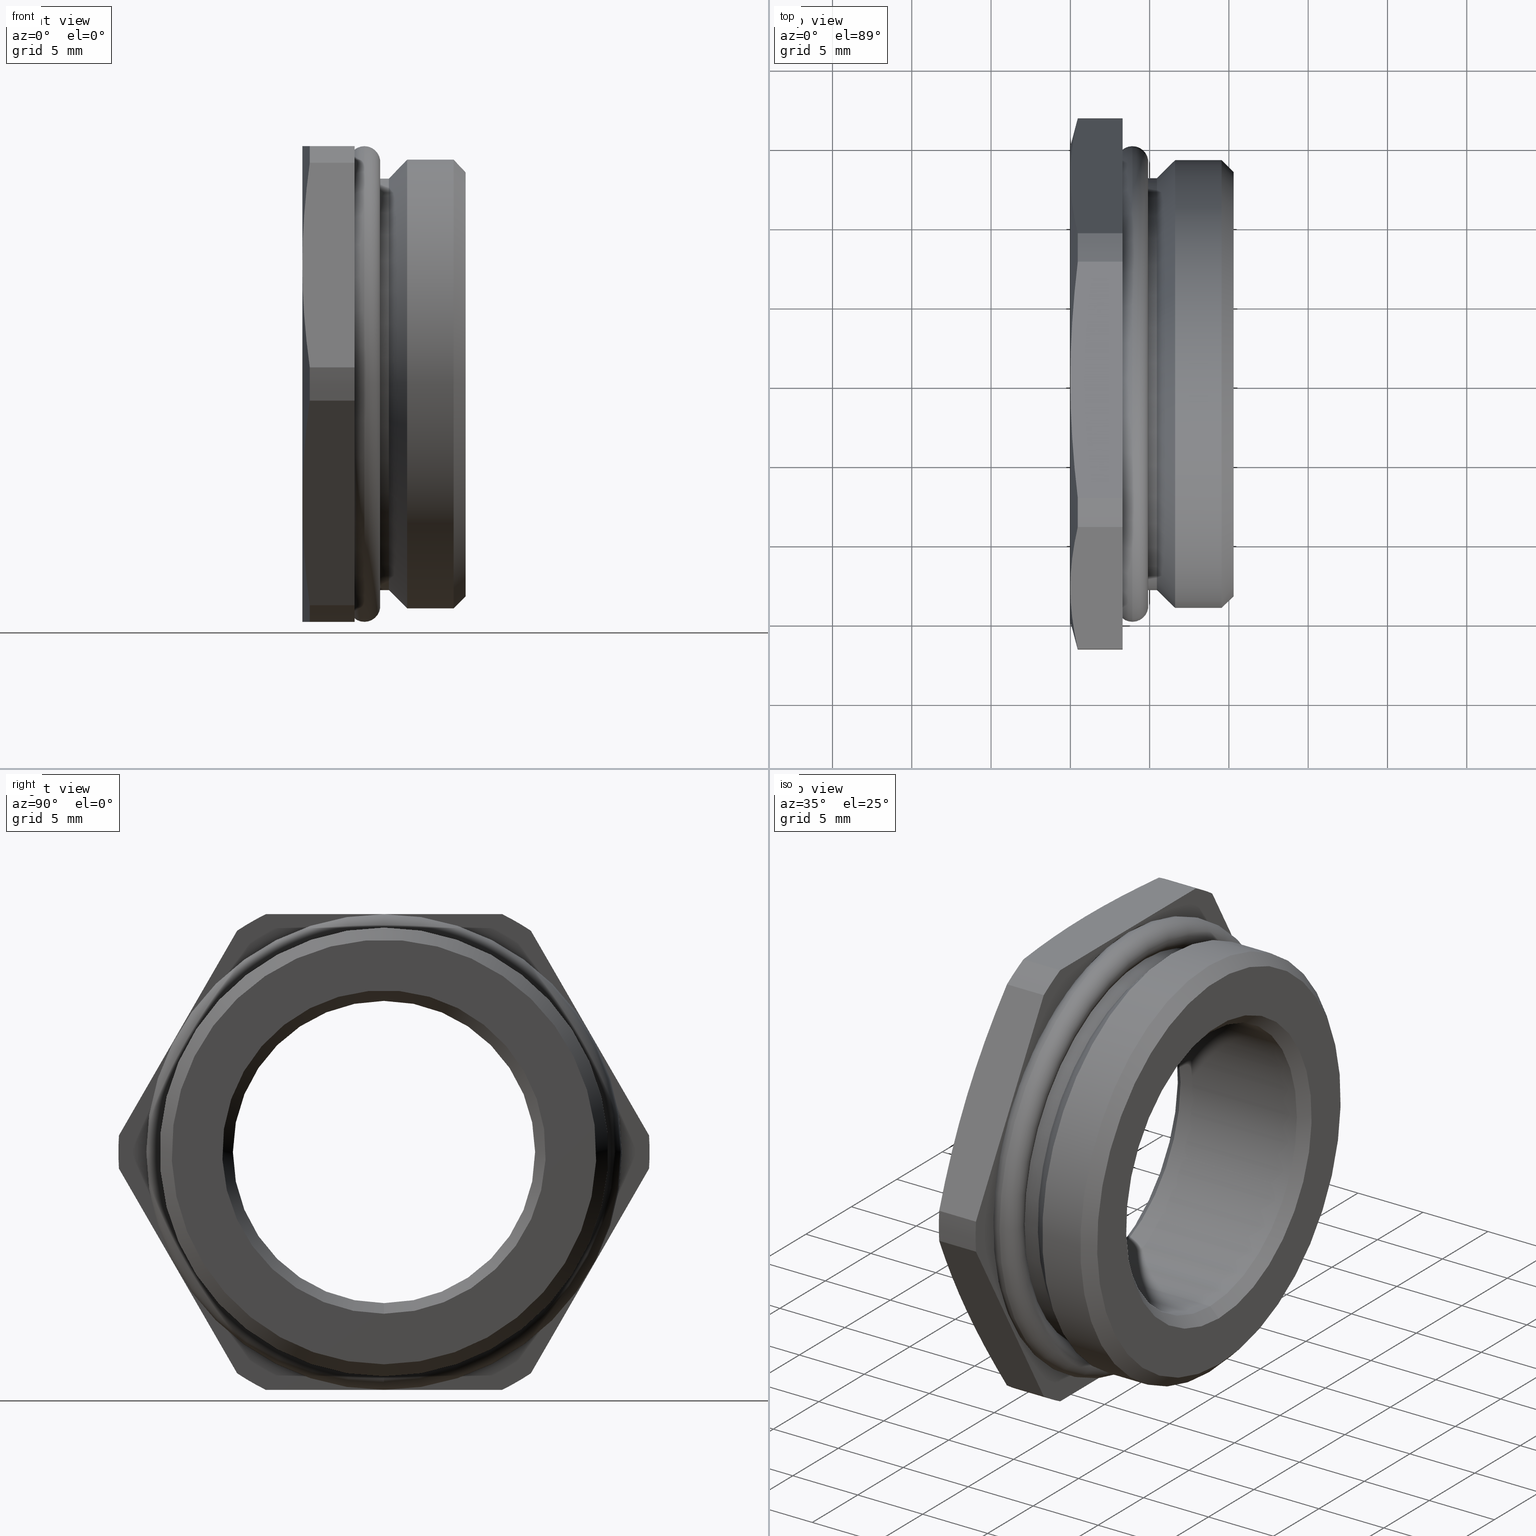
[diagram: canonical four-view strip — front | top / right | iso, engineering-drawing reading convention]
A machine part, canonical four-view strip (front | top / right | iso — engineering-drawing reading convention). The complete STEP part file that produces these views, byte-faithful:
ISO-10303-21;
HEADER;
FILE_DESCRIPTION( ( 'STEP AP203' ), '1' );
FILE_NAME( '//expscmdclustefs.cadenas.external/client_exchange/iodir/jobs/output/wkb75510342_no0/STEP/RSD-Ms_1_077_2113_01_2_03.stp', '  ', ( '  ' ), ( '  ' ), 'PSStep 15.0.47', 'PARTsolutions', '  ' );
FILE_SCHEMA( ( 'CONFIG_CONTROL_DESIGN' ) );
ENDSEC;
DATA;
#1 = DESIGN_CONTEXT( '', #55, 'design' );
#2 = APPLICATION_PROTOCOL_DEFINITION( 'international standard', 'config_control_design', 1994, #55 );
#3 = PRODUCT_CATEGORY_RELATIONSHIP( 'NONE', 'NONE', #56, #57 );
#4 = DATE_AND_TIME( #58, #59 );
#5 = DATE_TIME_ROLE( 'creation_date' );
#6 = DATE_TIME_ROLE( 'classification_date' );
#7 = PERSON_AND_ORGANIZATION_ROLE( 'creator' );
#8 = PERSON_AND_ORGANIZATION_ROLE( 'design_supplier' );
#9 = PERSON_AND_ORGANIZATION_ROLE( 'classification_officer' );
#10 = PERSON_AND_ORGANIZATION_ROLE( 'design_owner' );
#11 = APPROVAL_PERSON_ORGANIZATION( #60, #61, #62 );
#12 = APPROVAL_DATE_TIME( #4, #61 );
#13 = CC_DESIGN_APPROVAL( #61, ( #63, #64, #65 ) );
#14 = CC_DESIGN_DATE_AND_TIME_ASSIGNMENT( #4, #5, ( #65 ) );
#15 = CC_DESIGN_DATE_AND_TIME_ASSIGNMENT( #4, #6, ( #63 ) );
#16 = CC_DESIGN_PERSON_AND_ORGANIZATION_ASSIGNMENT( #60, #10, ( #66 ) );
#17 = CC_DESIGN_PERSON_AND_ORGANIZATION_ASSIGNMENT( #60, #7, ( #65 ) );
#18 = CC_DESIGN_PERSON_AND_ORGANIZATION_ASSIGNMENT( #60, #7, ( #64 ) );
#19 = CC_DESIGN_PERSON_AND_ORGANIZATION_ASSIGNMENT( #60, #8, ( #64 ) );
#20 = CC_DESIGN_SECURITY_CLASSIFICATION( #63, ( #64 ) );
#21 = CC_DESIGN_PERSON_AND_ORGANIZATION_ASSIGNMENT( #60, #9, ( #63 ) );
#22 = SHAPE_DEFINITION_REPRESENTATION( #67, #68 );
#23 = PRODUCT_CATEGORY_RELATIONSHIP( 'NONE', 'NONE', #56, #69 );
#24 = DATE_AND_TIME( #70, #71 );
#25 = APPROVAL_DATE_TIME( #24, #61 );
#26 = CC_DESIGN_APPROVAL( #61, ( #63, #72, #73 ) );
#27 = CC_DESIGN_DATE_AND_TIME_ASSIGNMENT( #24, #5, ( #73 ) );
#28 = CC_DESIGN_DATE_AND_TIME_ASSIGNMENT( #24, #6, ( #63 ) );
#29 = CC_DESIGN_PERSON_AND_ORGANIZATION_ASSIGNMENT( #60, #10, ( #74 ) );
#30 = CC_DESIGN_PERSON_AND_ORGANIZATION_ASSIGNMENT( #60, #7, ( #73 ) );
#31 = CC_DESIGN_PERSON_AND_ORGANIZATION_ASSIGNMENT( #60, #7, ( #72 ) );
#32 = CC_DESIGN_PERSON_AND_ORGANIZATION_ASSIGNMENT( #60, #8, ( #72 ) );
#33 = CC_DESIGN_SECURITY_CLASSIFICATION( #63, ( #72 ) );
#34 = CONTEXT_DEPENDENT_SHAPE_REPRESENTATION( #75, #76 );
#35 = SHAPE_DEFINITION_REPRESENTATION( #77, #78 );
#36 = SHAPE_REPRESENTATION_RELATIONSHIP( 'NONE', 'NONE', #78, #79 );
#37 = PRODUCT_CATEGORY_RELATIONSHIP( 'NONE', 'NONE', #56, #80 );
#38 = DATE_AND_TIME( #81, #82 );
#39 = APPROVAL_DATE_TIME( #38, #61 );
#40 = CC_DESIGN_APPROVAL( #61, ( #63, #83, #84 ) );
#41 = CC_DESIGN_DATE_AND_TIME_ASSIGNMENT( #38, #5, ( #84 ) );
#42 = CC_DESIGN_DATE_AND_TIME_ASSIGNMENT( #38, #6, ( #63 ) );
#43 = CC_DESIGN_PERSON_AND_ORGANIZATION_ASSIGNMENT( #60, #10, ( #85 ) );
#44 = CC_DESIGN_PERSON_AND_ORGANIZATION_ASSIGNMENT( #60, #7, ( #84 ) );
#45 = CC_DESIGN_PERSON_AND_ORGANIZATION_ASSIGNMENT( #60, #7, ( #83 ) );
#46 = CC_DESIGN_PERSON_AND_ORGANIZATION_ASSIGNMENT( #60, #8, ( #83 ) );
#47 = CC_DESIGN_SECURITY_CLASSIFICATION( #63, ( #83 ) );
#48 = CONTEXT_DEPENDENT_SHAPE_REPRESENTATION( #86, #87 );
#49 = SHAPE_DEFINITION_REPRESENTATION( #88, #89 );
#50 = SHAPE_REPRESENTATION_RELATIONSHIP( 'NONE', 'NONE', #89, #90 );
#51 =  ( GEOMETRIC_REPRESENTATION_CONTEXT( 3 )GLOBAL_UNCERTAINTY_ASSIGNED_CONTEXT( ( #93 ) )GLOBAL_UNIT_ASSIGNED_CONTEXT( ( #95, #96, #97 ) )REPRESENTATION_CONTEXT( 'NONE', 'WORKSPACE' ) );
#55 = APPLICATION_CONTEXT( 'configuration controlled 3D designs of mechanical parts and assemblies' );
#56 = PRODUCT_CATEGORY( 'part', 'NONE' );
#57 = PRODUCT_RELATED_PRODUCT_CATEGORY( 'detail', ' ', ( #66 ) );
#58 = CALENDAR_DATE( 2014, 30, 5 );
#59 = LOCAL_TIME( 22, 24, 17.0000000000000, #99 );
#60 = PERSON_AND_ORGANIZATION( #100, #101 );
#61 = APPROVAL( #102, 'SOLID MODEL' );
#62 = APPROVAL_ROLE( 'APPROVED' );
#63 = SECURITY_CLASSIFICATION( '', '', #103 );
#64 = PRODUCT_DEFINITION_FORMATION_WITH_SPECIFIED_SOURCE( ' ', 'NONE', #66, .NOT_KNOWN. );
#65 = PRODUCT_DEFINITION( 'NONE', 'NONE', #64, #1 );
#66 = PRODUCT( 'RSD-Ms 1.077.2113.01', 'RSD-Ms 1.077.2113.01', 'PART-RSD-Ms 1.077.2113.01-DESC', ( #104 ) );
#67 = PRODUCT_DEFINITION_SHAPE( 'NONE', 'NONE', #65 );
#68 = SHAPE_REPRESENTATION( 'RSD-Ms 1.077.2113.01', ( #105, #106, #107 ), #108 );
#69 = PRODUCT_RELATED_PRODUCT_CATEGORY( 'detail', ' ', ( #74 ) );
#70 = CALENDAR_DATE( 2014, 30, 5 );
#71 = LOCAL_TIME( 22, 24, 17.0000000000000, #109 );
#72 = PRODUCT_DEFINITION_FORMATION_WITH_SPECIFIED_SOURCE( ' ', 'NONE', #74, .NOT_KNOWN. );
#73 = PRODUCT_DEFINITION( 'HI_RSD-Ms 1.077.2113.01-Reduction', 'HI_RSD-Ms 1.077.2113.01-Reduction', #72, #1 );
#74 = PRODUCT( 'HI_RSD-Ms 1.077.2113.01-Reduction', 'HI_RSD-Ms 1.077.2113.01-Reduction', 'PART-HI_RSD-Ms 1.077.2113.01-Reduction-DESC', ( #104 ) );
#75 = ( REPRESENTATION_RELATIONSHIP( '', '', #78, #68 )REPRESENTATION_RELATIONSHIP_WITH_TRANSFORMATION( #112 )SHAPE_REPRESENTATION_RELATIONSHIP(  ) );
#76 = PRODUCT_DEFINITION_SHAPE( 'NAUO-PROD-DEF', 'NAUO-PROD-DEF', #114 );
#77 = PRODUCT_DEFINITION_SHAPE( 'NONE', 'NONE', #73 );
#78 = SHAPE_REPRESENTATION( 'HI_RSD-Ms 1.077.2113.01-Reduction', ( #105 ), #108 );
#79 = ADVANCED_BREP_SHAPE_REPRESENTATION( 'HI_RSD-Ms 1.077.2113.01-Reduction', ( #115 ), #51 );
#80 = PRODUCT_RELATED_PRODUCT_CATEGORY( 'detail', ' ', ( #85 ) );
#81 = CALENDAR_DATE( 2014, 30, 5 );
#82 = LOCAL_TIME( 22, 24, 17.0000000000000, #116 );
#83 = PRODUCT_DEFINITION_FORMATION_WITH_SPECIFIED_SOURCE( ' ', 'NONE', #85, .NOT_KNOWN. );
#84 = PRODUCT_DEFINITION( 'HI_RSD-Ms 1.077.2113.01-O-Ring', 'HI_RSD-Ms 1.077.2113.01-O-Ring', #83, #1 );
#85 = PRODUCT( 'HI_RSD-Ms 1.077.2113.01-O-Ring', 'HI_RSD-Ms 1.077.2113.01-O-Ring', 'PART-HI_RSD-Ms 1.077.2113.01-O-Ring-DESC', ( #104 ) );
#86 = ( REPRESENTATION_RELATIONSHIP( '', '', #89, #68 )REPRESENTATION_RELATIONSHIP_WITH_TRANSFORMATION( #119 )SHAPE_REPRESENTATION_RELATIONSHIP(  ) );
#87 = PRODUCT_DEFINITION_SHAPE( 'NAUO-PROD-DEF', 'NAUO-PROD-DEF', #121 );
#88 = PRODUCT_DEFINITION_SHAPE( 'NONE', 'NONE', #84 );
#89 = SHAPE_REPRESENTATION( 'HI_RSD-Ms 1.077.2113.01-O-Ring', ( #105 ), #108 );
#90 = ADVANCED_BREP_SHAPE_REPRESENTATION( 'HI_RSD-Ms 1.077.2113.01-O-Ring', ( #122 ), #51 );
#93 = UNCERTAINTY_MEASURE_WITH_UNIT( LENGTH_MEASURE( 0.00100000000000000 ), #95, '', '' );
#95 =  ( CONVERSION_BASED_UNIT( 'MILLIMETRE', #125 )LENGTH_UNIT(  )NAMED_UNIT( #128 ) );
#96 =  ( NAMED_UNIT( #130 )PLANE_ANGLE_UNIT(  )SI_UNIT( $, .RADIAN. ) );
#97 =  ( NAMED_UNIT( #130 )SI_UNIT( $, .STERADIAN. )SOLID_ANGLE_UNIT(  ) );
#99 = COORDINATED_UNIVERSAL_TIME_OFFSET( 1, 0, .AHEAD. );
#100 = PERSON( '', 'UNSPECIFIED', $, $, $, $ );
#101 = ORGANIZATION( 'UNSPECIFIED', 'UNSPECIFIED', 'UNSPECIFIED' );
#102 = APPROVAL_STATUS( 'approved' );
#103 = SECURITY_CLASSIFICATION_LEVEL( 'unclassified' );
#104 = MECHANICAL_CONTEXT( '', #55, 'mechanical' );
#105 = AXIS2_PLACEMENT_3D( '', #136, #137, #138 );
#106 = AXIS2_PLACEMENT_3D( '', #139, #140, #141 );
#107 = AXIS2_PLACEMENT_3D( '', #142, #143, #144 );
#108 =  ( GEOMETRIC_REPRESENTATION_CONTEXT( 3 )GLOBAL_UNCERTAINTY_ASSIGNED_CONTEXT( ( #147 ) )GLOBAL_UNIT_ASSIGNED_CONTEXT( ( #149, #150, #151 ) )REPRESENTATION_CONTEXT( 'NONE', 'WORKSPACE' ) );
#109 = COORDINATED_UNIVERSAL_TIME_OFFSET( 1, 0, .AHEAD. );
#112 = ITEM_DEFINED_TRANSFORMATION( '', '', #105, #106 );
#114 = NEXT_ASSEMBLY_USAGE_OCCURRENCE( 'NAUO1', 'NAUO1', 'NAUO1', #65, #73, $ );
#115 = MANIFOLD_SOLID_BREP( 'HI_RSD-Ms 1.077.2113.01-Reduction', #153 );
#116 = COORDINATED_UNIVERSAL_TIME_OFFSET( 1, 0, .AHEAD. );
#119 = ITEM_DEFINED_TRANSFORMATION( '', '', #105, #107 );
#121 = NEXT_ASSEMBLY_USAGE_OCCURRENCE( 'NAUO2', 'NAUO2', 'NAUO2', #65, #84, $ );
#122 = MANIFOLD_SOLID_BREP( 'HI_RSD-Ms 1.077.2113.01-O-Ring', #154 );
#125 = LENGTH_MEASURE_WITH_UNIT( LENGTH_MEASURE( 1.00000000000000 ), #155 );
#128 = DIMENSIONAL_EXPONENTS( 1.00000000000000, 0.000000000000000, 0.000000000000000, 0.000000000000000, 0.000000000000000, 0.000000000000000, 0.000000000000000 );
#130 = DIMENSIONAL_EXPONENTS( 0.000000000000000, 0.000000000000000, 0.000000000000000, 0.000000000000000, 0.000000000000000, 0.000000000000000, 0.000000000000000 );
#136 = CARTESIAN_POINT( '', ( 0.000000000000000, 0.000000000000000, 0.000000000000000 ) );
#137 = DIRECTION( '', ( 0.000000000000000, 0.000000000000000, 1.00000000000000 ) );
#138 = DIRECTION( '', ( 1.00000000000000, 0.000000000000000, 0.000000000000000 ) );
#139 = CARTESIAN_POINT( '', ( 0.000000000000000, 0.000000000000000, 0.000000000000000 ) );
#140 = DIRECTION( '', ( 0.000000000000000, 0.000000000000000, 1.00000000000000 ) );
#141 = DIRECTION( '', ( 1.00000000000000, 0.000000000000000, 0.000000000000000 ) );
#142 = CARTESIAN_POINT( '', ( 3.91420000000000, 0.000000000000000, 0.000000000000000 ) );
#143 = DIRECTION( '', ( 0.000000000000000, 0.000000000000000, 1.00000000000000 ) );
#144 = DIRECTION( '', ( -1.00000000000000, 0.000000000000000, 0.000000000000000 ) );
#147 = UNCERTAINTY_MEASURE_WITH_UNIT( LENGTH_MEASURE( 0.00100000000000000 ), #149, '', '' );
#149 =  ( CONVERSION_BASED_UNIT( 'MILLIMETRE', #158 )LENGTH_UNIT(  )NAMED_UNIT( #161 ) );
#150 =  ( NAMED_UNIT( #163 )PLANE_ANGLE_UNIT(  )SI_UNIT( $, .RADIAN. ) );
#151 =  ( NAMED_UNIT( #163 )SI_UNIT( $, .STERADIAN. )SOLID_ANGLE_UNIT(  ) );
#153 = CLOSED_SHELL( '', ( #169, #170, #171, #172, #173, #174, #175, #176, #177, #178, #179, #180, #181, #182, #183, #184, #185, #186, #187, #188, #189, #190, #191, #192, #193, #194, #195, #196, #197, #198 ) );
#154 = CLOSED_SHELL( '', ( #199 ) );
#155 =  ( LENGTH_UNIT(  )NAMED_UNIT( #128 )SI_UNIT( .MILLI., .METRE. ) );
#158 = LENGTH_MEASURE_WITH_UNIT( LENGTH_MEASURE( 1.00000000000000 ), #201 );
#161 = DIMENSIONAL_EXPONENTS( 1.00000000000000, 0.000000000000000, 0.000000000000000, 0.000000000000000, 0.000000000000000, 0.000000000000000, 0.000000000000000 );
#163 = DIMENSIONAL_EXPONENTS( 0.000000000000000, 0.000000000000000, 0.000000000000000, 0.000000000000000, 0.000000000000000, 0.000000000000000, 0.000000000000000 );
#169 = ADVANCED_FACE( '', ( #202 ), #203, .T. );
#170 = ADVANCED_FACE( '', ( #204, #205 ), #206, .F. );
#171 = ADVANCED_FACE( '', ( #207 ), #208, .F. );
#172 = ADVANCED_FACE( '', ( #209 ), #210, .T. );
#173 = ADVANCED_FACE( '', ( #211, #212 ), #213, .F. );
#174 = ADVANCED_FACE( '', ( #214 ), #215, .F. );
#175 = ADVANCED_FACE( '', ( #216 ), #217, .T. );
#176 = ADVANCED_FACE( '', ( #218 ), #219, .T. );
#177 = ADVANCED_FACE( '', ( #220 ), #221, .F. );
#178 = ADVANCED_FACE( '', ( #222 ), #223, .F. );
#179 = ADVANCED_FACE( '', ( #224, #225 ), #226, .F. );
#180 = ADVANCED_FACE( '', ( #227, #228 ), #229, .F. );
#181 = ADVANCED_FACE( '', ( #230, #231 ), #232, .F. );
#182 = ADVANCED_FACE( '', ( #233, #234 ), #235, .T. );
#183 = ADVANCED_FACE( '', ( #236, #237 ), #238, .F. );
#184 = ADVANCED_FACE( '', ( #239, #240 ), #241, .T. );
#185 = ADVANCED_FACE( '', ( #242, #243 ), #244, .T. );
#186 = ADVANCED_FACE( '', ( #245, #246 ), #247, .T. );
#187 = ADVANCED_FACE( '', ( #248, #249 ), #250, .F. );
#188 = ADVANCED_FACE( '', ( #251, #252 ), #253, .F. );
#189 = ADVANCED_FACE( '', ( #254 ), #255, .T. );
#190 = ADVANCED_FACE( '', ( #256 ), #257, .T. );
#191 = ADVANCED_FACE( '', ( #258 ), #259, .T. );
#192 = ADVANCED_FACE( '', ( #260 ), #261, .T. );
#193 = ADVANCED_FACE( '', ( #262 ), #263, .T. );
#194 = ADVANCED_FACE( '', ( #264 ), #265, .T. );
#195 = ADVANCED_FACE( '', ( #266 ), #267, .T. );
#196 = ADVANCED_FACE( '', ( #268 ), #269, .F. );
#197 = ADVANCED_FACE( '', ( #270 ), #271, .F. );
#198 = ADVANCED_FACE( '', ( #272 ), #273, .T. );
#199 = ADVANCED_FACE( '', ( #274 ), #275, .T. );
#201 =  ( LENGTH_UNIT(  )NAMED_UNIT( #161 )SI_UNIT( .MILLI., .METRE. ) );
#202 = FACE_OUTER_BOUND( '', #277, .T. );
#203 = CONICAL_SURFACE( '', #278, 15.0000000000000, 1.30899693899575 );
#204 = FACE_OUTER_BOUND( '', #279, .T. );
#205 = FACE_BOUND( '', #280, .T. );
#206 = PLANE( '', #281 );
#207 = FACE_OUTER_BOUND( '', #282, .T. );
#208 = PLANE( '', #283 );
#209 = FACE_OUTER_BOUND( '', #284, .T. );
#210 = CONICAL_SURFACE( '', #285, 15.0000000000000, 1.30899693899575 );
#211 = FACE_BOUND( '', #286, .T. );
#212 = FACE_OUTER_BOUND( '', #287, .T. );
#213 = PLANE( '', #288 );
#214 = FACE_OUTER_BOUND( '', #289, .T. );
#215 = PLANE( '', #290 );
#216 = FACE_OUTER_BOUND( '', #291, .T. );
#217 = CYLINDRICAL_SURFACE( '', #292, 16.7500000000000 );
#218 = FACE_OUTER_BOUND( '', #293, .T. );
#219 = CONICAL_SURFACE( '', #294, 15.0000000000000, 1.30899693899575 );
#220 = FACE_OUTER_BOUND( '', #295, .T. );
#221 = PLANE( '', #296 );
#222 = FACE_OUTER_BOUND( '', #297, .T. );
#223 = PLANE( '', #298 );
#224 = FACE_OUTER_BOUND( '', #299, .T. );
#225 = FACE_BOUND( '', #300, .T. );
#226 = CONICAL_SURFACE( '', #301, 9.53000000000000, 0.785398163397448 );
#227 = FACE_OUTER_BOUND( '', #302, .T. );
#228 = FACE_OUTER_BOUND( '', #303, .T. );
#229 = CYLINDRICAL_SURFACE( '', #304, 9.53000000000000 );
#230 = FACE_BOUND( '', #305, .T. );
#231 = FACE_OUTER_BOUND( '', #306, .T. );
#232 = CONICAL_SURFACE( '', #307, 10.2000000000000, 0.785398163397447 );
#233 = FACE_BOUND( '', #308, .T. );
#234 = FACE_OUTER_BOUND( '', #309, .T. );
#235 = CONICAL_SURFACE( '', #310, 14.1500000000000, 0.785398163397450 );
#236 = FACE_BOUND( '', #311, .T. );
#237 = FACE_OUTER_BOUND( '', #312, .T. );
#238 = PLANE( '', #313 );
#239 = FACE_OUTER_BOUND( '', #314, .T. );
#240 = FACE_OUTER_BOUND( '', #315, .T. );
#241 = CYLINDRICAL_SURFACE( '', #316, 14.1500000000000 );
#242 = FACE_OUTER_BOUND( '', #317, .T. );
#243 = FACE_BOUND( '', #318, .T. );
#244 = CONICAL_SURFACE( '', #319, 13.0000000000000, 0.785398163397449 );
#245 = FACE_OUTER_BOUND( '', #320, .T. );
#246 = FACE_OUTER_BOUND( '', #321, .T. );
#247 = CYLINDRICAL_SURFACE( '', #322, 13.0000000000000 );
#248 = FACE_OUTER_BOUND( '', #323, .T. );
#249 = FACE_OUTER_BOUND( '', #324, .T. );
#250 = TOROIDAL_SURFACE( '', #325, 13.2000000000000, 0.199999999999999 );
#251 = FACE_BOUND( '', #326, .T. );
#252 = FACE_OUTER_BOUND( '', #327, .T. );
#253 = CONICAL_SURFACE( '', #328, 14.7997979746447, 0.785398163397448 );
#254 = FACE_OUTER_BOUND( '', #329, .T. );
#255 = CYLINDRICAL_SURFACE( '', #330, 16.7500000000000 );
#256 = FACE_OUTER_BOUND( '', #331, .T. );
#257 = CYLINDRICAL_SURFACE( '', #332, 16.7500000000000 );
#258 = FACE_OUTER_BOUND( '', #333, .T. );
#259 = CYLINDRICAL_SURFACE( '', #334, 16.7500000000000 );
#260 = FACE_OUTER_BOUND( '', #335, .T. );
#261 = CYLINDRICAL_SURFACE( '', #336, 16.7500000000000 );
#262 = FACE_OUTER_BOUND( '', #337, .T. );
#263 = CONICAL_SURFACE( '', #338, 15.0000000000000, 1.30899693899575 );
#264 = FACE_OUTER_BOUND( '', #339, .T. );
#265 = CONICAL_SURFACE( '', #340, 15.0000000000000, 1.30899693899575 );
#266 = FACE_OUTER_BOUND( '', #341, .T. );
#267 = CONICAL_SURFACE( '', #342, 15.0000000000000, 1.30899693899575 );
#268 = FACE_OUTER_BOUND( '', #343, .T. );
#269 = PLANE( '', #344 );
#270 = FACE_OUTER_BOUND( '', #345, .T. );
#271 = PLANE( '', #346 );
#272 = FACE_OUTER_BOUND( '', #347, .T. );
#273 = CYLINDRICAL_SURFACE( '', #348, 16.7500000000000 );
#274 = FACE_BOUND( '', #349, .T. );
#275 = TOROIDAL_SURFACE( '', #350, 14.0000000000000, 1.00000000000000 );
#277 = EDGE_LOOP( '', ( #351, #352, #353, #354 ) );
#278 = AXIS2_PLACEMENT_3D( '', #355, #356, #357 );
#279 = EDGE_LOOP( '', ( #358, #359, #360, #361, #362, #363 ) );
#280 = EDGE_LOOP( '', ( #364 ) );
#281 = AXIS2_PLACEMENT_3D( '', #365, #366, #367 );
#282 = EDGE_LOOP( '', ( #368, #369, #370, #371, #372 ) );
#283 = AXIS2_PLACEMENT_3D( '', #373, #374, #375 );
#284 = EDGE_LOOP( '', ( #376, #377, #378, #379 ) );
#285 = AXIS2_PLACEMENT_3D( '', #380, #381, #382 );
#286 = EDGE_LOOP( '', ( #383 ) );
#287 = EDGE_LOOP( '', ( #384, #385, #386, #387, #388, #389, #390, #391, #392, #393, #394, #395 ) );
#288 = AXIS2_PLACEMENT_3D( '', #396, #397, #398 );
#289 = EDGE_LOOP( '', ( #399, #400, #401, #402, #403 ) );
#290 = AXIS2_PLACEMENT_3D( '', #404, #405, #406 );
#291 = EDGE_LOOP( '', ( #407, #408, #409, #410 ) );
#292 = AXIS2_PLACEMENT_3D( '', #411, #412, #413 );
#293 = EDGE_LOOP( '', ( #414, #415, #416, #417 ) );
#294 = AXIS2_PLACEMENT_3D( '', #418, #419, #420 );
#295 = EDGE_LOOP( '', ( #421, #422, #423, #424, #425 ) );
#296 = AXIS2_PLACEMENT_3D( '', #426, #427, #428 );
#297 = EDGE_LOOP( '', ( #429, #430, #431, #432, #433 ) );
#298 = AXIS2_PLACEMENT_3D( '', #434, #435, #436 );
#299 = EDGE_LOOP( '', ( #437 ) );
#300 = EDGE_LOOP( '', ( #438 ) );
#301 = AXIS2_PLACEMENT_3D( '', #439, #440, #441 );
#302 = EDGE_LOOP( '', ( #442 ) );
#303 = EDGE_LOOP( '', ( #443 ) );
#304 = AXIS2_PLACEMENT_3D( '', #444, #445, #446 );
#305 = EDGE_LOOP( '', ( #447 ) );
#306 = EDGE_LOOP( '', ( #448 ) );
#307 = AXIS2_PLACEMENT_3D( '', #449, #450, #451 );
#308 = EDGE_LOOP( '', ( #452 ) );
#309 = EDGE_LOOP( '', ( #453 ) );
#310 = AXIS2_PLACEMENT_3D( '', #454, #455, #456 );
#311 = EDGE_LOOP( '', ( #457 ) );
#312 = EDGE_LOOP( '', ( #458 ) );
#313 = AXIS2_PLACEMENT_3D( '', #459, #460, #461 );
#314 = EDGE_LOOP( '', ( #462 ) );
#315 = EDGE_LOOP( '', ( #463 ) );
#316 = AXIS2_PLACEMENT_3D( '', #464, #465, #466 );
#317 = EDGE_LOOP( '', ( #467 ) );
#318 = EDGE_LOOP( '', ( #468 ) );
#319 = AXIS2_PLACEMENT_3D( '', #469, #470, #471 );
#320 = EDGE_LOOP( '', ( #472 ) );
#321 = EDGE_LOOP( '', ( #473 ) );
#322 = AXIS2_PLACEMENT_3D( '', #474, #475, #476 );
#323 = EDGE_LOOP( '', ( #477 ) );
#324 = EDGE_LOOP( '', ( #478 ) );
#325 = AXIS2_PLACEMENT_3D( '', #479, #480, #481 );
#326 = EDGE_LOOP( '', ( #482 ) );
#327 = EDGE_LOOP( '', ( #483 ) );
#328 = AXIS2_PLACEMENT_3D( '', #484, #485, #486 );
#329 = EDGE_LOOP( '', ( #487, #488, #489, #490 ) );
#330 = AXIS2_PLACEMENT_3D( '', #491, #492, #493 );
#331 = EDGE_LOOP( '', ( #494, #495, #496, #497 ) );
#332 = AXIS2_PLACEMENT_3D( '', #498, #499, #500 );
#333 = EDGE_LOOP( '', ( #501, #502, #503, #504 ) );
#334 = AXIS2_PLACEMENT_3D( '', #505, #506, #507 );
#335 = EDGE_LOOP( '', ( #508, #509, #510, #511 ) );
#336 = AXIS2_PLACEMENT_3D( '', #512, #513, #514 );
#337 = EDGE_LOOP( '', ( #515, #516, #517, #518 ) );
#338 = AXIS2_PLACEMENT_3D( '', #519, #520, #521 );
#339 = EDGE_LOOP( '', ( #522, #523, #524, #525 ) );
#340 = AXIS2_PLACEMENT_3D( '', #526, #527, #528 );
#341 = EDGE_LOOP( '', ( #529, #530, #531, #532 ) );
#342 = AXIS2_PLACEMENT_3D( '', #533, #534, #535 );
#343 = EDGE_LOOP( '', ( #536, #537, #538, #539, #540 ) );
#344 = AXIS2_PLACEMENT_3D( '', #541, #542, #543 );
#345 = EDGE_LOOP( '', ( #544, #545, #546, #547, #548 ) );
#346 = AXIS2_PLACEMENT_3D( '', #549, #550, #551 );
#347 = EDGE_LOOP( '', ( #552, #553, #554, #555 ) );
#348 = AXIS2_PLACEMENT_3D( '', #556, #557, #558 );
#349 = VERTEX_LOOP( '', #559 );
#350 = AXIS2_PLACEMENT_3D( '', #560, #561, #562 );
#351 = ORIENTED_EDGE( '', *, *, #563, .F. );
#352 = ORIENTED_EDGE( '', *, *, #564, .T. );
#353 = ORIENTED_EDGE( '', *, *, #565, .T. );
#354 = ORIENTED_EDGE( '', *, *, #566, .T. );
#355 = CARTESIAN_POINT( '', ( 0.000000000000000, 0.000000000000000, 0.000000000000000 ) );
#356 = DIRECTION( '', ( 1.00000000000000, -0.000000000000000, -0.000000000000000 ) );
#357 = DIRECTION( '', ( -0.000000000000000, 0.000000000000000, -1.00000000000000 ) );
#358 = ORIENTED_EDGE( '', *, *, #567, .F. );
#359 = ORIENTED_EDGE( '', *, *, #568, .F. );
#360 = ORIENTED_EDGE( '', *, *, #569, .F. );
#361 = ORIENTED_EDGE( '', *, *, #570, .F. );
#362 = ORIENTED_EDGE( '', *, *, #571, .F. );
#363 = ORIENTED_EDGE( '', *, *, #565, .F. );
#364 = ORIENTED_EDGE( '', *, *, #572, .T. );
#365 = CARTESIAN_POINT( '', ( 0.000000000000000, 0.000000000000000, 0.000000000000000 ) );
#366 = DIRECTION( '', ( 1.00000000000000, 0.000000000000000, -0.000000000000000 ) );
#367 = DIRECTION( '', ( -0.000000000000000, 0.000000000000000, -1.00000000000000 ) );
#368 = ORIENTED_EDGE( '', *, *, #573, .F. );
#369 = ORIENTED_EDGE( '', *, *, #574, .F. );
#370 = ORIENTED_EDGE( '', *, *, #575, .F. );
#371 = ORIENTED_EDGE( '', *, *, #566, .F. );
#372 = ORIENTED_EDGE( '', *, *, #576, .F. );
#373 = CARTESIAN_POINT( '', ( 5.00000000000000, 8.66025403784439, 15.0000000000000 ) );
#374 = DIRECTION( '', ( 0.000000000000000, 0.000000000000000, -1.00000000000000 ) );
#375 = DIRECTION( '', ( -1.00000000000000, 0.000000000000000, 0.000000000000000 ) );
#376 = ORIENTED_EDGE( '', *, *, #571, .T. );
#377 = ORIENTED_EDGE( '', *, *, #577, .T. );
#378 = ORIENTED_EDGE( '', *, *, #578, .F. );
#379 = ORIENTED_EDGE( '', *, *, #576, .T. );
#380 = CARTESIAN_POINT( '', ( 0.000000000000000, 0.000000000000000, 0.000000000000000 ) );
#381 = DIRECTION( '', ( 1.00000000000000, -0.000000000000000, -0.000000000000000 ) );
#382 = DIRECTION( '', ( -0.000000000000000, 0.000000000000000, -1.00000000000000 ) );
#383 = ORIENTED_EDGE( '', *, *, #579, .F. );
#384 = ORIENTED_EDGE( '', *, *, #580, .T. );
#385 = ORIENTED_EDGE( '', *, *, #581, .T. );
#386 = ORIENTED_EDGE( '', *, *, #582, .T. );
#387 = ORIENTED_EDGE( '', *, *, #574, .T. );
#388 = ORIENTED_EDGE( '', *, *, #583, .T. );
#389 = ORIENTED_EDGE( '', *, *, #584, .T. );
#390 = ORIENTED_EDGE( '', *, *, #585, .T. );
#391 = ORIENTED_EDGE( '', *, *, #586, .T. );
#392 = ORIENTED_EDGE( '', *, *, #587, .T. );
#393 = ORIENTED_EDGE( '', *, *, #588, .T. );
#394 = ORIENTED_EDGE( '', *, *, #589, .T. );
#395 = ORIENTED_EDGE( '', *, *, #590, .T. );
#396 = CARTESIAN_POINT( '', ( 3.30000000000000, 16.7500000000000, 0.000000000000000 ) );
#397 = DIRECTION( '', ( -1.00000000000000, 0.000000000000000, 0.000000000000000 ) );
#398 = DIRECTION( '', ( 0.000000000000000, 0.000000000000000, 1.00000000000000 ) );
#399 = ORIENTED_EDGE( '', *, *, #591, .F. );
#400 = ORIENTED_EDGE( '', *, *, #590, .F. );
#401 = ORIENTED_EDGE( '', *, *, #592, .F. );
#402 = ORIENTED_EDGE( '', *, *, #593, .F. );
#403 = ORIENTED_EDGE( '', *, *, #594, .F. );
#404 = CARTESIAN_POINT( '', ( 5.00000000000000, 8.66025403784439, -15.0000000000000 ) );
#405 = DIRECTION( '', ( 0.000000000000000, -0.866025403784439, 0.500000000000000 ) );
#406 = DIRECTION( '', ( 0.000000000000000, -0.500000000000000, -0.866025403784439 ) );
#407 = ORIENTED_EDGE( '', *, *, #595, .T. );
#408 = ORIENTED_EDGE( '', *, *, #592, .T. );
#409 = ORIENTED_EDGE( '', *, *, #589, .F. );
#410 = ORIENTED_EDGE( '', *, *, #596, .T. );
#411 = CARTESIAN_POINT( '', ( 10.3000000000000, 0.000000000000000, 0.000000000000000 ) );
#412 = DIRECTION( '', ( -1.00000000000000, -0.000000000000000, 0.000000000000000 ) );
#413 = DIRECTION( '', ( -0.000000000000000, 0.000000000000000, -1.00000000000000 ) );
#414 = ORIENTED_EDGE( '', *, *, #567, .T. );
#415 = ORIENTED_EDGE( '', *, *, #597, .T. );
#416 = ORIENTED_EDGE( '', *, *, #598, .F. );
#417 = ORIENTED_EDGE( '', *, *, #594, .T. );
#418 = CARTESIAN_POINT( '', ( 0.000000000000000, 0.000000000000000, 0.000000000000000 ) );
#419 = DIRECTION( '', ( 1.00000000000000, -0.000000000000000, -0.000000000000000 ) );
#420 = DIRECTION( '', ( -0.000000000000000, 0.000000000000000, -1.00000000000000 ) );
#421 = ORIENTED_EDGE( '', *, *, #599, .F. );
#422 = ORIENTED_EDGE( '', *, *, #581, .F. );
#423 = ORIENTED_EDGE( '', *, *, #600, .F. );
#424 = ORIENTED_EDGE( '', *, *, #597, .F. );
#425 = ORIENTED_EDGE( '', *, *, #564, .F. );
#426 = CARTESIAN_POINT( '', ( 5.00000000000000, 17.3205080756888, 0.000000000000000 ) );
#427 = DIRECTION( '', ( 0.000000000000000, -0.866025403784439, -0.500000000000000 ) );
#428 = DIRECTION( '', ( 0.000000000000000, 0.500000000000000, -0.866025403784439 ) );
#429 = ORIENTED_EDGE( '', *, *, #596, .F. );
#430 = ORIENTED_EDGE( '', *, *, #588, .F. );
#431 = ORIENTED_EDGE( '', *, *, #601, .F. );
#432 = ORIENTED_EDGE( '', *, *, #602, .F. );
#433 = ORIENTED_EDGE( '', *, *, #603, .F. );
#434 = CARTESIAN_POINT( '', ( 5.00000000000000, -8.66025403784439, -15.0000000000000 ) );
#435 = DIRECTION( '', ( 0.000000000000000, 0.000000000000000, 1.00000000000000 ) );
#436 = DIRECTION( '', ( 1.00000000000000, 0.000000000000000, -0.000000000000000 ) );
#437 = ORIENTED_EDGE( '', *, *, #604, .T. );
#438 = ORIENTED_EDGE( '', *, *, #605, .F. );
#439 = CARTESIAN_POINT( '', ( 9.63000000000000, 0.000000000000000, 0.000000000000000 ) );
#440 = DIRECTION( '', ( 1.00000000000000, -0.000000000000000, -0.000000000000000 ) );
#441 = DIRECTION( '', ( -0.000000000000000, 0.000000000000000, -1.00000000000000 ) );
#442 = ORIENTED_EDGE( '', *, *, #605, .T. );
#443 = ORIENTED_EDGE( '', *, *, #606, .F. );
#444 = CARTESIAN_POINT( '', ( 10.3000000000000, 0.000000000000000, 0.000000000000000 ) );
#445 = DIRECTION( '', ( -1.00000000000000, -0.000000000000000, 0.000000000000000 ) );
#446 = DIRECTION( '', ( -0.000000000000000, 0.000000000000000, -1.00000000000000 ) );
#447 = ORIENTED_EDGE( '', *, *, #606, .T. );
#448 = ORIENTED_EDGE( '', *, *, #572, .F. );
#449 = CARTESIAN_POINT( '', ( 0.000000000000000, 0.000000000000000, 0.000000000000000 ) );
#450 = DIRECTION( '', ( -1.00000000000000, 0.000000000000000, -0.000000000000000 ) );
#451 = DIRECTION( '', ( 0.000000000000000, 0.000000000000000, 1.00000000000000 ) );
#452 = ORIENTED_EDGE( '', *, *, #607, .F. );
#453 = ORIENTED_EDGE( '', *, *, #608, .T. );
#454 = CARTESIAN_POINT( '', ( 9.54000000000000, 0.000000000000000, 0.000000000000000 ) );
#455 = DIRECTION( '', ( -1.00000000000000, 0.000000000000000, -0.000000000000000 ) );
#456 = DIRECTION( '', ( 0.000000000000000, 0.000000000000000, 1.00000000000000 ) );
#457 = ORIENTED_EDGE( '', *, *, #604, .F. );
#458 = ORIENTED_EDGE( '', *, *, #607, .T. );
#459 = CARTESIAN_POINT( '', ( 10.3000000000000, 13.3900000000000, 0.000000000000000 ) );
#460 = DIRECTION( '', ( -1.00000000000000, 0.000000000000000, 0.000000000000000 ) );
#461 = DIRECTION( '', ( 0.000000000000000, 0.000000000000000, 1.00000000000000 ) );
#462 = ORIENTED_EDGE( '', *, *, #608, .F. );
#463 = ORIENTED_EDGE( '', *, *, #609, .T. );
#464 = CARTESIAN_POINT( '', ( 10.3000000000000, 0.000000000000000, 0.000000000000000 ) );
#465 = DIRECTION( '', ( -1.00000000000000, -0.000000000000000, 0.000000000000000 ) );
#466 = DIRECTION( '', ( -0.000000000000000, 0.000000000000000, -1.00000000000000 ) );
#467 = ORIENTED_EDGE( '', *, *, #609, .F. );
#468 = ORIENTED_EDGE( '', *, *, #610, .T. );
#469 = CARTESIAN_POINT( '', ( 5.46000000000000, 0.000000000000000, 0.000000000000000 ) );
#470 = DIRECTION( '', ( 1.00000000000000, -0.000000000000000, -0.000000000000000 ) );
#471 = DIRECTION( '', ( -0.000000000000000, 0.000000000000000, -1.00000000000000 ) );
#472 = ORIENTED_EDGE( '', *, *, #610, .F. );
#473 = ORIENTED_EDGE( '', *, *, #611, .T. );
#474 = CARTESIAN_POINT( '', ( 10.3000000000000, 0.000000000000000, 0.000000000000000 ) );
#475 = DIRECTION( '', ( -1.00000000000000, -0.000000000000000, 0.000000000000000 ) );
#476 = DIRECTION( '', ( -0.000000000000000, 0.000000000000000, -1.00000000000000 ) );
#477 = ORIENTED_EDGE( '', *, *, #611, .F. );
#478 = ORIENTED_EDGE( '', *, *, #612, .T. );
#479 = CARTESIAN_POINT( '', ( 1.98304473782995, 0.000000000000000, 0.000000000000000 ) );
#480 = DIRECTION( '', ( 1.00000000000000, 0.000000000000000, -0.000000000000000 ) );
#481 = DIRECTION( '', ( -0.000000000000000, 0.000000000000000, -1.00000000000000 ) );
#482 = ORIENTED_EDGE( '', *, *, #612, .F. );
#483 = ORIENTED_EDGE( '', *, *, #579, .T. );
#484 = CARTESIAN_POINT( '', ( 3.30000000000000, 0.000000000000000, 0.000000000000000 ) );
#485 = DIRECTION( '', ( 1.00000000000000, -0.000000000000000, -0.000000000000000 ) );
#486 = DIRECTION( '', ( -0.000000000000000, 0.000000000000000, -1.00000000000000 ) );
#487 = ORIENTED_EDGE( '', *, *, #580, .F. );
#488 = ORIENTED_EDGE( '', *, *, #591, .T. );
#489 = ORIENTED_EDGE( '', *, *, #598, .T. );
#490 = ORIENTED_EDGE( '', *, *, #600, .T. );
#491 = CARTESIAN_POINT( '', ( 10.3000000000000, 0.000000000000000, 0.000000000000000 ) );
#492 = DIRECTION( '', ( -1.00000000000000, -0.000000000000000, 0.000000000000000 ) );
#493 = DIRECTION( '', ( -0.000000000000000, 0.000000000000000, -1.00000000000000 ) );
#494 = ORIENTED_EDGE( '', *, *, #582, .F. );
#495 = ORIENTED_EDGE( '', *, *, #599, .T. );
#496 = ORIENTED_EDGE( '', *, *, #563, .T. );
#497 = ORIENTED_EDGE( '', *, *, #575, .T. );
#498 = CARTESIAN_POINT( '', ( 10.3000000000000, 0.000000000000000, 0.000000000000000 ) );
#499 = DIRECTION( '', ( -1.00000000000000, -0.000000000000000, 0.000000000000000 ) );
#500 = DIRECTION( '', ( -0.000000000000000, 0.000000000000000, -1.00000000000000 ) );
#501 = ORIENTED_EDGE( '', *, *, #613, .T. );
#502 = ORIENTED_EDGE( '', *, *, #601, .T. );
#503 = ORIENTED_EDGE( '', *, *, #587, .F. );
#504 = ORIENTED_EDGE( '', *, *, #614, .T. );
#505 = CARTESIAN_POINT( '', ( 10.3000000000000, 0.000000000000000, 0.000000000000000 ) );
#506 = DIRECTION( '', ( -1.00000000000000, -0.000000000000000, 0.000000000000000 ) );
#507 = DIRECTION( '', ( -0.000000000000000, 0.000000000000000, -1.00000000000000 ) );
#508 = ORIENTED_EDGE( '', *, *, #578, .T. );
#509 = ORIENTED_EDGE( '', *, *, #615, .T. );
#510 = ORIENTED_EDGE( '', *, *, #583, .F. );
#511 = ORIENTED_EDGE( '', *, *, #573, .T. );
#512 = CARTESIAN_POINT( '', ( 10.3000000000000, 0.000000000000000, 0.000000000000000 ) );
#513 = DIRECTION( '', ( -1.00000000000000, -0.000000000000000, 0.000000000000000 ) );
#514 = DIRECTION( '', ( -0.000000000000000, 0.000000000000000, -1.00000000000000 ) );
#515 = ORIENTED_EDGE( '', *, *, #568, .T. );
#516 = ORIENTED_EDGE( '', *, *, #593, .T. );
#517 = ORIENTED_EDGE( '', *, *, #595, .F. );
#518 = ORIENTED_EDGE( '', *, *, #603, .T. );
#519 = CARTESIAN_POINT( '', ( 0.000000000000000, 0.000000000000000, 0.000000000000000 ) );
#520 = DIRECTION( '', ( 1.00000000000000, -0.000000000000000, -0.000000000000000 ) );
#521 = DIRECTION( '', ( -0.000000000000000, 0.000000000000000, -1.00000000000000 ) );
#522 = ORIENTED_EDGE( '', *, *, #569, .T. );
#523 = ORIENTED_EDGE( '', *, *, #602, .T. );
#524 = ORIENTED_EDGE( '', *, *, #613, .F. );
#525 = ORIENTED_EDGE( '', *, *, #616, .T. );
#526 = CARTESIAN_POINT( '', ( 0.000000000000000, 0.000000000000000, 0.000000000000000 ) );
#527 = DIRECTION( '', ( 1.00000000000000, -0.000000000000000, -0.000000000000000 ) );
#528 = DIRECTION( '', ( -0.000000000000000, 0.000000000000000, -1.00000000000000 ) );
#529 = ORIENTED_EDGE( '', *, *, #570, .T. );
#530 = ORIENTED_EDGE( '', *, *, #617, .T. );
#531 = ORIENTED_EDGE( '', *, *, #618, .F. );
#532 = ORIENTED_EDGE( '', *, *, #619, .T. );
#533 = CARTESIAN_POINT( '', ( 0.000000000000000, 0.000000000000000, 0.000000000000000 ) );
#534 = DIRECTION( '', ( 1.00000000000000, -0.000000000000000, -0.000000000000000 ) );
#535 = DIRECTION( '', ( -0.000000000000000, 0.000000000000000, -1.00000000000000 ) );
#536 = ORIENTED_EDGE( '', *, *, #620, .F. );
#537 = ORIENTED_EDGE( '', *, *, #584, .F. );
#538 = ORIENTED_EDGE( '', *, *, #615, .F. );
#539 = ORIENTED_EDGE( '', *, *, #577, .F. );
#540 = ORIENTED_EDGE( '', *, *, #619, .F. );
#541 = CARTESIAN_POINT( '', ( 5.00000000000000, -8.66025403784439, 15.0000000000000 ) );
#542 = DIRECTION( '', ( 0.000000000000000, 0.866025403784439, -0.500000000000000 ) );
#543 = DIRECTION( '', ( 0.000000000000000, 0.500000000000000, 0.866025403784439 ) );
#544 = ORIENTED_EDGE( '', *, *, #614, .F. );
#545 = ORIENTED_EDGE( '', *, *, #586, .F. );
#546 = ORIENTED_EDGE( '', *, *, #621, .F. );
#547 = ORIENTED_EDGE( '', *, *, #617, .F. );
#548 = ORIENTED_EDGE( '', *, *, #616, .F. );
#549 = CARTESIAN_POINT( '', ( 5.00000000000000, -17.3205080756888, 0.000000000000000 ) );
#550 = DIRECTION( '', ( -0.000000000000000, 0.866025403784439, 0.500000000000000 ) );
#551 = DIRECTION( '', ( 0.000000000000000, -0.500000000000000, 0.866025403784439 ) );
#552 = ORIENTED_EDGE( '', *, *, #618, .T. );
#553 = ORIENTED_EDGE( '', *, *, #621, .T. );
#554 = ORIENTED_EDGE( '', *, *, #585, .F. );
#555 = ORIENTED_EDGE( '', *, *, #620, .T. );
#556 = CARTESIAN_POINT( '', ( 10.3000000000000, 0.000000000000000, 0.000000000000000 ) );
#557 = DIRECTION( '', ( -1.00000000000000, -0.000000000000000, 0.000000000000000 ) );
#558 = DIRECTION( '', ( -0.000000000000000, 0.000000000000000, -1.00000000000000 ) );
#559 = VERTEX_POINT( '', #622 );
#560 = CARTESIAN_POINT( '', ( 0.000000000000000, 0.000000000000000, 0.000000000000000 ) );
#561 = DIRECTION( '', ( 1.00000000000000, 0.000000000000000, -0.000000000000000 ) );
#562 = DIRECTION( '', ( -0.000000000000000, 0.000000000000000, -1.00000000000000 ) );
#563 = EDGE_CURVE( '', #623, #624, #625, .T. );
#564 = EDGE_CURVE( '', #623, #626, #627, .T. );
#565 = EDGE_CURVE( '', #626, #628, #629, .T. );
#566 = EDGE_CURVE( '', #628, #624, #630, .T. );
#567 = EDGE_CURVE( '', #631, #626, #632, .T. );
#568 = EDGE_CURVE( '', #633, #631, #634, .T. );
#569 = EDGE_CURVE( '', #635, #633, #636, .T. );
#570 = EDGE_CURVE( '', #637, #635, #638, .T. );
#571 = EDGE_CURVE( '', #628, #637, #639, .T. );
#572 = EDGE_CURVE( '', #640, #640, #641, .T. );
#573 = EDGE_CURVE( '', #642, #643, #644, .F. );
#574 = EDGE_CURVE( '', #645, #642, #646, .T. );
#575 = EDGE_CURVE( '', #624, #645, #647, .T. );
#576 = EDGE_CURVE( '', #643, #628, #648, .T. );
#577 = EDGE_CURVE( '', #637, #649, #650, .T. );
#578 = EDGE_CURVE( '', #643, #649, #651, .T. );
#579 = EDGE_CURVE( '', #652, #652, #653, .T. );
#580 = EDGE_CURVE( '', #654, #655, #656, .T. );
#581 = EDGE_CURVE( '', #655, #657, #658, .T. );
#582 = EDGE_CURVE( '', #657, #645, #659, .T. );
#583 = EDGE_CURVE( '', #642, #660, #661, .T. );
#584 = EDGE_CURVE( '', #660, #662, #663, .T. );
#585 = EDGE_CURVE( '', #662, #664, #665, .T. );
#586 = EDGE_CURVE( '', #664, #666, #667, .T. );
#587 = EDGE_CURVE( '', #666, #668, #669, .T. );
#588 = EDGE_CURVE( '', #668, #670, #671, .T. );
#589 = EDGE_CURVE( '', #670, #672, #673, .T. );
#590 = EDGE_CURVE( '', #672, #654, #674, .T. );
#591 = EDGE_CURVE( '', #654, #675, #676, .F. );
#592 = EDGE_CURVE( '', #677, #672, #678, .T. );
#593 = EDGE_CURVE( '', #631, #677, #679, .T. );
#594 = EDGE_CURVE( '', #675, #631, #680, .T. );
#595 = EDGE_CURVE( '', #681, #677, #682, .T. );
#596 = EDGE_CURVE( '', #670, #681, #683, .F. );
#597 = EDGE_CURVE( '', #626, #684, #685, .T. );
#598 = EDGE_CURVE( '', #675, #684, #686, .T. );
#599 = EDGE_CURVE( '', #657, #623, #687, .F. );
#600 = EDGE_CURVE( '', #684, #655, #688, .T. );
#601 = EDGE_CURVE( '', #689, #668, #690, .T. );
#602 = EDGE_CURVE( '', #633, #689, #691, .F. );
#603 = EDGE_CURVE( '', #681, #633, #692, .F. );
#604 = EDGE_CURVE( '', #693, #693, #694, .T. );
#605 = EDGE_CURVE( '', #695, #695, #696, .T. );
#606 = EDGE_CURVE( '', #697, #697, #698, .T. );
#607 = EDGE_CURVE( '', #699, #699, #700, .T. );
#608 = EDGE_CURVE( '', #701, #701, #702, .T. );
#609 = EDGE_CURVE( '', #703, #703, #704, .T. );
#610 = EDGE_CURVE( '', #705, #705, #706, .T. );
#611 = EDGE_CURVE( '', #707, #707, #708, .T. );
#612 = EDGE_CURVE( '', #709, #709, #710, .T. );
#613 = EDGE_CURVE( '', #711, #689, #712, .T. );
#614 = EDGE_CURVE( '', #666, #711, #713, .F. );
#615 = EDGE_CURVE( '', #649, #660, #714, .T. );
#616 = EDGE_CURVE( '', #711, #635, #715, .T. );
#617 = EDGE_CURVE( '', #635, #716, #717, .T. );
#618 = EDGE_CURVE( '', #718, #716, #719, .T. );
#619 = EDGE_CURVE( '', #718, #637, #720, .T. );
#620 = EDGE_CURVE( '', #662, #718, #721, .F. );
#621 = EDGE_CURVE( '', #716, #664, #722, .T. );
#622 = CARTESIAN_POINT( '', ( 0.000000000000000, 0.000000000000000, -15.0000000000000 ) );
#623 = VERTEX_POINT( '', #723 );
#624 = VERTEX_POINT( '', #724 );
#625 = CIRCLE( '', #725, 16.7500000000000 );
#626 = VERTEX_POINT( '', #726 );
#627 = B_SPLINE_CURVE_WITH_KNOTS( '', 3, ( #727, #728, #729, #730, #731, #732 ), .UNSPECIFIED., .F., .F., ( 4, 2, 4 ), ( 1.67711285439351E-006, 0.00372868999182329, 0.00745570287079219 ), .UNSPECIFIED. );
#628 = VERTEX_POINT( '', #733 );
#629 = CIRCLE( '', #734, 15.0000000000000 );
#630 = B_SPLINE_CURVE_WITH_KNOTS( '', 3, ( #735, #736, #737, #738, #739, #740 ), .UNSPECIFIED., .F., .F., ( 4, 2, 4 ), ( 0.0231785160432582, 0.0269354841346734, 0.0306924522260885 ), .UNSPECIFIED. );
#631 = VERTEX_POINT( '', #741 );
#632 = CIRCLE( '', #742, 15.0000000000000 );
#633 = VERTEX_POINT( '', #743 );
#634 = CIRCLE( '', #744, 15.0000000000000 );
#635 = VERTEX_POINT( '', #745 );
#636 = CIRCLE( '', #746, 15.0000000000000 );
#637 = VERTEX_POINT( '', #747 );
#638 = CIRCLE( '', #748, 15.0000000000000 );
#639 = CIRCLE( '', #749, 15.0000000000000 );
#640 = VERTEX_POINT( '', #750 );
#641 = CIRCLE( '', #751, 10.2000000000000 );
#642 = VERTEX_POINT( '', #752 );
#643 = VERTEX_POINT( '', #753 );
#644 = LINE( '', #754, #755 );
#645 = VERTEX_POINT( '', #756 );
#646 = LINE( '', #757, #758 );
#647 = LINE( '', #759, #760 );
#648 = B_SPLINE_CURVE_WITH_KNOTS( '', 3, ( #761, #762, #763, #764, #765, #766 ), .UNSPECIFIED., .F., .F., ( 4, 2, 4 ), ( 0.0156911318943500, 0.0194348239688041, 0.0231785160432582 ), .UNSPECIFIED. );
#649 = VERTEX_POINT( '', #767 );
#650 = B_SPLINE_CURVE_WITH_KNOTS( '', 3, ( #768, #769, #770, #771, #772, #773 ), .UNSPECIFIED., .F., .F., ( 4, 2, 4 ), ( 0.00745570287079218, 0.0111827157497611, 0.0149097286287300 ), .UNSPECIFIED. );
#651 = CIRCLE( '', #774, 16.7500000000000 );
#652 = VERTEX_POINT( '', #775 );
#653 = CIRCLE( '', #776, 14.7997979746447 );
#654 = VERTEX_POINT( '', #777 );
#655 = VERTEX_POINT( '', #778 );
#656 = CIRCLE( '', #779, 16.7500000000000 );
#657 = VERTEX_POINT( '', #780 );
#658 = LINE( '', #781, #782 );
#659 = CIRCLE( '', #783, 16.7500000000000 );
#660 = VERTEX_POINT( '', #784 );
#661 = CIRCLE( '', #785, 16.7500000000000 );
#662 = VERTEX_POINT( '', #786 );
#663 = LINE( '', #787, #788 );
#664 = VERTEX_POINT( '', #789 );
#665 = CIRCLE( '', #790, 16.7500000000000 );
#666 = VERTEX_POINT( '', #791 );
#667 = LINE( '', #792, #793 );
#668 = VERTEX_POINT( '', #794 );
#669 = CIRCLE( '', #795, 16.7500000000000 );
#670 = VERTEX_POINT( '', #796 );
#671 = LINE( '', #797, #798 );
#672 = VERTEX_POINT( '', #799 );
#673 = CIRCLE( '', #800, 16.7500000000000 );
#674 = LINE( '', #801, #802 );
#675 = VERTEX_POINT( '', #803 );
#676 = LINE( '', #804, #805 );
#677 = VERTEX_POINT( '', #806 );
#678 = LINE( '', #807, #808 );
#679 = B_SPLINE_CURVE_WITH_KNOTS( '', 3, ( #809, #810, #811, #812, #813, #814 ), .UNSPECIFIED., .F., .F., ( 4, 2, 4 ), ( 0.00745570287079218, 0.0111827157497611, 0.0149097286287300 ), .UNSPECIFIED. );
#680 = B_SPLINE_CURVE_WITH_KNOTS( '', 3, ( #815, #816, #817, #818, #819, #820 ), .UNSPECIFIED., .F., .F., ( 4, 2, 4 ), ( 1.67711285438565E-006, 0.00372868999182328, 0.00745570287079218 ), .UNSPECIFIED. );
#681 = VERTEX_POINT( '', #821 );
#682 = CIRCLE( '', #822, 16.7500000000000 );
#683 = LINE( '', #823, #824 );
#684 = VERTEX_POINT( '', #825 );
#685 = B_SPLINE_CURVE_WITH_KNOTS( '', 3, ( #826, #827, #828, #829, #830, #831 ), .UNSPECIFIED., .F., .F., ( 4, 2, 4 ), ( 0.00745570287079219, 0.0111827157497611, 0.0149097286287300 ), .UNSPECIFIED. );
#686 = CIRCLE( '', #832, 16.7500000000000 );
#687 = LINE( '', #833, #834 );
#688 = LINE( '', #835, #836 );
#689 = VERTEX_POINT( '', #837 );
#690 = LINE( '', #838, #839 );
#691 = B_SPLINE_CURVE_WITH_KNOTS( '', 3, ( #840, #841, #842, #843, #844, #845 ), .UNSPECIFIED., .F., .F., ( 4, 2, 4 ), ( 0.0156911318943500, 0.0194348239688041, 0.0231785160432582 ), .UNSPECIFIED. );
#692 = B_SPLINE_CURVE_WITH_KNOTS( '', 3, ( #846, #847, #848, #849, #850, #851 ), .UNSPECIFIED., .F., .F., ( 4, 2, 4 ), ( 0.0231785160432582, 0.0269354841346734, 0.0306924522260885 ), .UNSPECIFIED. );
#693 = VERTEX_POINT( '', #852 );
#694 = CIRCLE( '', #853, 10.2000000000000 );
#695 = VERTEX_POINT( '', #854 );
#696 = CIRCLE( '', #855, 9.53000000000000 );
#697 = VERTEX_POINT( '', #856 );
#698 = CIRCLE( '', #857, 9.53000000000000 );
#699 = VERTEX_POINT( '', #858 );
#700 = CIRCLE( '', #859, 13.3900000000000 );
#701 = VERTEX_POINT( '', #860 );
#702 = CIRCLE( '', #861, 14.1500000000000 );
#703 = VERTEX_POINT( '', #862 );
#704 = CIRCLE( '', #863, 14.1500000000000 );
#705 = VERTEX_POINT( '', #864 );
#706 = CIRCLE( '', #865, 13.0000000000000 );
#707 = VERTEX_POINT( '', #866 );
#708 = CIRCLE( '', #867, 13.0000000000000 );
#709 = VERTEX_POINT( '', #868 );
#710 = CIRCLE( '', #869, 13.3414213562373 );
#711 = VERTEX_POINT( '', #870 );
#712 = CIRCLE( '', #871, 16.7500000000000 );
#713 = LINE( '', #872, #873 );
#714 = LINE( '', #874, #875 );
#715 = B_SPLINE_CURVE_WITH_KNOTS( '', 3, ( #876, #877, #878, #879, #880, #881 ), .UNSPECIFIED., .F., .F., ( 4, 2, 4 ), ( 1.67711285439351E-006, 0.00372868999182329, 0.00745570287079219 ), .UNSPECIFIED. );
#716 = VERTEX_POINT( '', #882 );
#717 = B_SPLINE_CURVE_WITH_KNOTS( '', 3, ( #883, #884, #885, #886, #887, #888 ), .UNSPECIFIED., .F., .F., ( 4, 2, 4 ), ( 0.00745570287079219, 0.0111827157497611, 0.0149097286287300 ), .UNSPECIFIED. );
#718 = VERTEX_POINT( '', #889 );
#719 = CIRCLE( '', #890, 16.7500000000000 );
#720 = B_SPLINE_CURVE_WITH_KNOTS( '', 3, ( #891, #892, #893, #894, #895, #896 ), .UNSPECIFIED., .F., .F., ( 4, 2, 4 ), ( 1.67711285438565E-006, 0.00372868999182328, 0.00745570287079218 ), .UNSPECIFIED. );
#721 = LINE( '', #897, #898 );
#722 = LINE( '', #899, #900 );
#723 = CARTESIAN_POINT( '', ( 0.468911086754465, 9.26336817779768, 13.9553756668377 ) );
#724 = CARTESIAN_POINT( '', ( 0.468911086754465, 7.45402575793779, 15.0000000000000 ) );
#725 = AXIS2_PLACEMENT_3D( '', #901, #902, #903 );
#726 = CARTESIAN_POINT( '', ( 0.000000000000000, 12.9903810567666, 7.50000000000000 ) );
#727 = CARTESIAN_POINT( '', ( 0.468911086754466, 9.26336817779768, 13.9553756668377 ) );
#728 = CARTESIAN_POINT( '', ( 0.320772509595717, 9.88453699095917, 12.8794797223647 ) );
#729 = CARTESIAN_POINT( '', ( 0.202478171409577, 10.5057058041207, 11.8035837778918 ) );
#730 = CARTESIAN_POINT( '', ( 0.0419381091522348, 11.7480434304436, 9.65179188894589 ) );
#731 = CARTESIAN_POINT( '', ( 1.11808349037568E-016, 12.3692122436051, 8.57589594447295 ) );
#732 = CARTESIAN_POINT( '', ( 1.16202332451449E-016, 12.9903810567666, 7.50000000000000 ) );
#733 = CARTESIAN_POINT( '', ( 0.000000000000000, 0.000000000000000, 15.0000000000000 ) );
#734 = AXIS2_PLACEMENT_3D( '', #904, #905, #906 );
#735 = CARTESIAN_POINT( '', ( -1.23259516440783E-029, 3.06370731077149E-015, 15.0000000000000 ) );
#736 = CARTESIAN_POINT( '', ( 7.22801448323670E-017, 1.24464596542971, 15.0000000000000 ) );
#737 = CARTESIAN_POINT( '', ( 0.0420890518405910, 2.48804876378053, 15.0000000000000 ) );
#738 = CARTESIAN_POINT( '', ( 0.202755021664268, 4.97259516971964, 15.0000000000000 ) );
#739 = CARTESIAN_POINT( '', ( 0.321018137493275, 6.21374804595357, 15.0000000000000 ) );
#740 = CARTESIAN_POINT( '', ( 0.468911086754466, 7.45402575793779, 15.0000000000000 ) );
#741 = CARTESIAN_POINT( '', ( 0.000000000000000, 12.9903810567666, -7.50000000000000 ) );
#742 = AXIS2_PLACEMENT_3D( '', #907, #908, #909 );
#743 = CARTESIAN_POINT( '', ( 0.000000000000000, 0.000000000000000, -15.0000000000000 ) );
#744 = AXIS2_PLACEMENT_3D( '', #910, #911, #912 );
#745 = CARTESIAN_POINT( '', ( 0.000000000000000, -12.9903810567666, -7.50000000000000 ) );
#746 = AXIS2_PLACEMENT_3D( '', #913, #914, #915 );
#747 = CARTESIAN_POINT( '', ( 0.000000000000000, -12.9903810567666, 7.50000000000000 ) );
#748 = AXIS2_PLACEMENT_3D( '', #916, #917, #918 );
#749 = AXIS2_PLACEMENT_3D( '', #919, #920, #921 );
#750 = CARTESIAN_POINT( '', ( 0.000000000000000, 0.000000000000000, -10.2000000000000 ) );
#751 = AXIS2_PLACEMENT_3D( '', #922, #923, #924 );
#752 = CARTESIAN_POINT( '', ( 3.30000000000000, -7.45402575793778, 15.0000000000000 ) );
#753 = CARTESIAN_POINT( '', ( 0.468911086754465, -7.45402575793779, 15.0000000000000 ) );
#754 = CARTESIAN_POINT( '', ( 10.3000000000000, -7.45402575793779, 15.0000000000000 ) );
#755 = VECTOR( '', #925, 1000.00000000000 );
#756 = CARTESIAN_POINT( '', ( 3.30000000000000, 7.45402575793778, 15.0000000000000 ) );
#757 = CARTESIAN_POINT( '', ( 3.30000000000000, 16.7500000000000, 15.0000000000000 ) );
#758 = VECTOR( '', #926, 1000.00000000000 );
#759 = CARTESIAN_POINT( '', ( 10.3000000000000, 7.45402575793779, 15.0000000000000 ) );
#760 = VECTOR( '', #927, 1000.00000000000 );
#761 = CARTESIAN_POINT( '', ( 0.468911086754466, -7.45402575793779, 15.0000000000000 ) );
#762 = CARTESIAN_POINT( '', ( 0.320894687384636, -6.21271275374355, 15.0000000000000 ) );
#763 = CARTESIAN_POINT( '', ( 0.202270044594659, -4.96696538242213, 15.0000000000000 ) );
#764 = CARTESIAN_POINT( '', ( 0.0418019578269163, -2.48173019479660, 15.0000000000000 ) );
#765 = CARTESIAN_POINT( '', ( -6.77626357803440E-017, -1.24024775374798, 15.0000000000000 ) );
#766 = CARTESIAN_POINT( '', ( -1.22745540881178E-029, 3.88987827824187E-015, 15.0000000000000 ) );
#767 = CARTESIAN_POINT( '', ( 0.468911086754465, -9.26336817779768, 13.9553756668377 ) );
#768 = CARTESIAN_POINT( '', ( 3.48613315859472E-016, -12.9903810567666, 7.50000000000000 ) );
#769 = CARTESIAN_POINT( '', ( 3.62106584951213E-016, -12.3692122436051, 8.57589594447294 ) );
#770 = CARTESIAN_POINT( '', ( 0.0419381091522346, -11.7480434304436, 9.65179188894589 ) );
#771 = CARTESIAN_POINT( '', ( 0.202478171409577, -10.5057058041207, 11.8035837778918 ) );
#772 = CARTESIAN_POINT( '', ( 0.320772509595717, -9.88453699095917, 12.8794797223647 ) );
#773 = CARTESIAN_POINT( '', ( 0.468911086754467, -9.26336817779768, 13.9553756668377 ) );
#774 = AXIS2_PLACEMENT_3D( '', #928, #929, #930 );
#775 = CARTESIAN_POINT( '', ( 3.30000000000000, 0.000000000000000, -14.7997979746447 ) );
#776 = AXIS2_PLACEMENT_3D( '', #931, #932, #933 );
#777 = CARTESIAN_POINT( '', ( 3.30000000000000, 16.7173939357355, -1.04462433316233 ) );
#778 = CARTESIAN_POINT( '', ( 3.30000000000000, 16.7173939357355, 1.04462433316233 ) );
#779 = AXIS2_PLACEMENT_3D( '', #934, #935, #936 );
#780 = CARTESIAN_POINT( '', ( 3.30000000000000, 9.26336817779770, 13.9553756668377 ) );
#781 = CARTESIAN_POINT( '', ( 3.30000000000000, 17.1778810567666, 0.247037243305327 ) );
#782 = VECTOR( '', #937, 1000.00000000000 );
#783 = AXIS2_PLACEMENT_3D( '', #938, #939, #940 );
#784 = CARTESIAN_POINT( '', ( 3.30000000000000, -9.26336817779770, 13.9553756668377 ) );
#785 = AXIS2_PLACEMENT_3D( '', #941, #942, #943 );
#786 = CARTESIAN_POINT( '', ( 3.30000000000000, -16.7173939357355, 1.04462433316234 ) );
#787 = CARTESIAN_POINT( '', ( 3.30000000000000, -8.80288105676659, 14.7529627566947 ) );
#788 = VECTOR( '', #944, 1000.00000000000 );
#789 = CARTESIAN_POINT( '', ( 3.30000000000000, -16.7173939357355, -1.04462433316234 ) );
#790 = AXIS2_PLACEMENT_3D( '', #945, #946, #947 );
#791 = CARTESIAN_POINT( '', ( 3.30000000000000, -9.26336817779770, -13.9553756668377 ) );
#792 = CARTESIAN_POINT( '', ( 3.30000000000000, -8.80288105676659, -14.7529627566947 ) );
#793 = VECTOR( '', #948, 1000.00000000000 );
#794 = CARTESIAN_POINT( '', ( 3.30000000000000, -7.45402575793778, -15.0000000000000 ) );
#795 = AXIS2_PLACEMENT_3D( '', #949, #950, #951 );
#796 = CARTESIAN_POINT( '', ( 3.30000000000000, 7.45402575793778, -15.0000000000000 ) );
#797 = CARTESIAN_POINT( '', ( 3.30000000000000, 16.7500000000000, -15.0000000000000 ) );
#798 = VECTOR( '', #952, 1000.00000000000 );
#799 = CARTESIAN_POINT( '', ( 3.30000000000000, 9.26336817779770, -13.9553756668377 ) );
#800 = AXIS2_PLACEMENT_3D( '', #953, #954, #955 );
#801 = CARTESIAN_POINT( '', ( 3.30000000000000, 17.1778810567666, -0.247037243305328 ) );
#802 = VECTOR( '', #956, 1000.00000000000 );
#803 = CARTESIAN_POINT( '', ( 0.468911086754465, 16.7173939357355, -1.04462433316231 ) );
#804 = CARTESIAN_POINT( '', ( 10.3000000000000, 16.7173939357355, -1.04462433316231 ) );
#805 = VECTOR( '', #957, 1000.00000000000 );
#806 = CARTESIAN_POINT( '', ( 0.468911086754465, 9.26336817779768, -13.9553756668377 ) );
#807 = CARTESIAN_POINT( '', ( 10.3000000000000, 9.26336817779768, -13.9553756668377 ) );
#808 = VECTOR( '', #958, 1000.00000000000 );
#809 = CARTESIAN_POINT( '', ( 3.48613315859472E-016, 12.9903810567666, -7.50000000000000 ) );
#810 = CARTESIAN_POINT( '', ( 3.62106584951213E-016, 12.3692122436051, -8.57589594447294 ) );
#811 = CARTESIAN_POINT( '', ( 0.0419381091522346, 11.7480434304436, -9.65179188894589 ) );
#812 = CARTESIAN_POINT( '', ( 0.202478171409577, 10.5057058041207, -11.8035837778918 ) );
#813 = CARTESIAN_POINT( '', ( 0.320772509595717, 9.88453699095917, -12.8794797223647 ) );
#814 = CARTESIAN_POINT( '', ( 0.468911086754467, 9.26336817779768, -13.9553756668377 ) );
#815 = CARTESIAN_POINT( '', ( 0.468911086754466, 16.7173939357355, -1.04462433316232 ) );
#816 = CARTESIAN_POINT( '', ( 0.320772509595717, 16.0962251225740, -2.12052027763526 ) );
#817 = CARTESIAN_POINT( '', ( 0.202478171409577, 15.4750563094125, -3.19641622210821 ) );
#818 = CARTESIAN_POINT( '', ( 0.0419381091522348, 14.2327186830895, -5.34820811105410 ) );
#819 = CARTESIAN_POINT( '', ( 3.59141969635823E-016, 13.6115498699281, -6.42410405552705 ) );
#820 = CARTESIAN_POINT( '', ( 3.48613315859472E-016, 12.9903810567666, -7.50000000000000 ) );
#821 = CARTESIAN_POINT( '', ( 0.468911086754465, 7.45402575793779, -15.0000000000000 ) );
#822 = AXIS2_PLACEMENT_3D( '', #959, #960, #961 );
#823 = CARTESIAN_POINT( '', ( 10.3000000000000, 7.45402575793779, -15.0000000000000 ) );
#824 = VECTOR( '', #962, 1000.00000000000 );
#825 = CARTESIAN_POINT( '', ( 0.468911086754465, 16.7173939357355, 1.04462433316231 ) );
#826 = CARTESIAN_POINT( '', ( 1.16202332451449E-016, 12.9903810567666, 7.50000000000000 ) );
#827 = CARTESIAN_POINT( '', ( 1.29596040929908E-016, 13.6115498699281, 6.42410405552705 ) );
#828 = CARTESIAN_POINT( '', ( 0.0419381091522347, 14.2327186830895, 5.34820811105411 ) );
#829 = CARTESIAN_POINT( '', ( 0.202478171409577, 15.4750563094125, 3.19641622210821 ) );
#830 = CARTESIAN_POINT( '', ( 0.320772509595717, 16.0962251225740, 2.12052027763526 ) );
#831 = CARTESIAN_POINT( '', ( 0.468911086754466, 16.7173939357355, 1.04462433316231 ) );
#832 = AXIS2_PLACEMENT_3D( '', #963, #964, #965 );
#833 = CARTESIAN_POINT( '', ( 10.3000000000000, 9.26336817779768, 13.9553756668377 ) );
#834 = VECTOR( '', #966, 1000.00000000000 );
#835 = CARTESIAN_POINT( '', ( 10.3000000000000, 16.7173939357355, 1.04462433316231 ) );
#836 = VECTOR( '', #967, 1000.00000000000 );
#837 = CARTESIAN_POINT( '', ( 0.468911086754465, -7.45402575793779, -15.0000000000000 ) );
#838 = CARTESIAN_POINT( '', ( 10.3000000000000, -7.45402575793779, -15.0000000000000 ) );
#839 = VECTOR( '', #968, 1000.00000000000 );
#840 = CARTESIAN_POINT( '', ( 0.468911086754466, -7.45402575793779, -15.0000000000000 ) );
#841 = CARTESIAN_POINT( '', ( 0.320894687384636, -6.21271275374355, -15.0000000000000 ) );
#842 = CARTESIAN_POINT( '', ( 0.202270044594659, -4.96696538242213, -15.0000000000000 ) );
#843 = CARTESIAN_POINT( '', ( 0.0418019578269163, -2.48173019479660, -15.0000000000000 ) );
#844 = CARTESIAN_POINT( '', ( -6.77626357803440E-017, -1.24024775374798, -15.0000000000000 ) );
#845 = CARTESIAN_POINT( '', ( -1.22745540881178E-029, 3.88987827824187E-015, -15.0000000000000 ) );
#846 = CARTESIAN_POINT( '', ( -1.23259516440783E-029, 3.06370731077149E-015, -15.0000000000000 ) );
#847 = CARTESIAN_POINT( '', ( 7.22801448323670E-017, 1.24464596542971, -15.0000000000000 ) );
#848 = CARTESIAN_POINT( '', ( 0.0420890518405910, 2.48804876378053, -15.0000000000000 ) );
#849 = CARTESIAN_POINT( '', ( 0.202755021664268, 4.97259516971964, -15.0000000000000 ) );
#850 = CARTESIAN_POINT( '', ( 0.321018137493275, 6.21374804595357, -15.0000000000000 ) );
#851 = CARTESIAN_POINT( '', ( 0.468911086754466, 7.45402575793779, -15.0000000000000 ) );
#852 = CARTESIAN_POINT( '', ( 10.3000000000000, 0.000000000000000, -10.2000000000000 ) );
#853 = AXIS2_PLACEMENT_3D( '', #969, #970, #971 );
#854 = CARTESIAN_POINT( '', ( 9.63000000000000, 0.000000000000000, -9.53000000000000 ) );
#855 = AXIS2_PLACEMENT_3D( '', #972, #973, #974 );
#856 = CARTESIAN_POINT( '', ( 0.670000000000000, 0.000000000000000, -9.53000000000000 ) );
#857 = AXIS2_PLACEMENT_3D( '', #975, #976, #977 );
#858 = CARTESIAN_POINT( '', ( 10.3000000000000, 0.000000000000000, -13.3900000000000 ) );
#859 = AXIS2_PLACEMENT_3D( '', #978, #979, #980 );
#860 = CARTESIAN_POINT( '', ( 9.54000000000000, 0.000000000000000, -14.1500000000000 ) );
#861 = AXIS2_PLACEMENT_3D( '', #981, #982, #983 );
#862 = CARTESIAN_POINT( '', ( 6.61000000000000, 0.000000000000000, -14.1500000000000 ) );
#863 = AXIS2_PLACEMENT_3D( '', #984, #985, #986 );
#864 = CARTESIAN_POINT( '', ( 5.46000000000000, 0.000000000000000, -13.0000000000000 ) );
#865 = AXIS2_PLACEMENT_3D( '', #987, #988, #989 );
#866 = CARTESIAN_POINT( '', ( 1.98304473782995, 0.000000000000000, -13.0000000000000 ) );
#867 = AXIS2_PLACEMENT_3D( '', #990, #991, #992 );
#868 = CARTESIAN_POINT( '', ( 1.84162338159264, 0.000000000000000, -13.3414213562373 ) );
#869 = AXIS2_PLACEMENT_3D( '', #993, #994, #995 );
#870 = CARTESIAN_POINT( '', ( 0.468911086754465, -9.26336817779768, -13.9553756668377 ) );
#871 = AXIS2_PLACEMENT_3D( '', #996, #997, #998 );
#872 = CARTESIAN_POINT( '', ( 10.3000000000000, -9.26336817779768, -13.9553756668377 ) );
#873 = VECTOR( '', #999, 1000.00000000000 );
#874 = CARTESIAN_POINT( '', ( 10.3000000000000, -9.26336817779768, 13.9553756668377 ) );
#875 = VECTOR( '', #1000, 1000.00000000000 );
#876 = CARTESIAN_POINT( '', ( 0.468911086754466, -9.26336817779768, -13.9553756668377 ) );
#877 = CARTESIAN_POINT( '', ( 0.320772509595717, -9.88453699095917, -12.8794797223647 ) );
#878 = CARTESIAN_POINT( '', ( 0.202478171409577, -10.5057058041207, -11.8035837778918 ) );
#879 = CARTESIAN_POINT( '', ( 0.0419381091522348, -11.7480434304436, -9.65179188894589 ) );
#880 = CARTESIAN_POINT( '', ( 1.11808349037568E-016, -12.3692122436051, -8.57589594447295 ) );
#881 = CARTESIAN_POINT( '', ( 1.16202332451449E-016, -12.9903810567666, -7.50000000000000 ) );
#882 = CARTESIAN_POINT( '', ( 0.468911086754465, -16.7173939357355, -1.04462433316231 ) );
#883 = CARTESIAN_POINT( '', ( 1.16202332451449E-016, -12.9903810567666, -7.50000000000000 ) );
#884 = CARTESIAN_POINT( '', ( 1.29596040929908E-016, -13.6115498699281, -6.42410405552705 ) );
#885 = CARTESIAN_POINT( '', ( 0.0419381091522347, -14.2327186830895, -5.34820811105411 ) );
#886 = CARTESIAN_POINT( '', ( 0.202478171409577, -15.4750563094125, -3.19641622210821 ) );
#887 = CARTESIAN_POINT( '', ( 0.320772509595717, -16.0962251225740, -2.12052027763526 ) );
#888 = CARTESIAN_POINT( '', ( 0.468911086754466, -16.7173939357355, -1.04462433316231 ) );
#889 = CARTESIAN_POINT( '', ( 0.468911086754465, -16.7173939357355, 1.04462433316231 ) );
#890 = AXIS2_PLACEMENT_3D( '', #1001, #1002, #1003 );
#891 = CARTESIAN_POINT( '', ( 0.468911086754466, -16.7173939357355, 1.04462433316232 ) );
#892 = CARTESIAN_POINT( '', ( 0.320772509595717, -16.0962251225740, 2.12052027763526 ) );
#893 = CARTESIAN_POINT( '', ( 0.202478171409577, -15.4750563094125, 3.19641622210821 ) );
#894 = CARTESIAN_POINT( '', ( 0.0419381091522348, -14.2327186830895, 5.34820811105410 ) );
#895 = CARTESIAN_POINT( '', ( 3.59141969635823E-016, -13.6115498699281, 6.42410405552705 ) );
#896 = CARTESIAN_POINT( '', ( 3.48613315859472E-016, -12.9903810567666, 7.50000000000000 ) );
#897 = CARTESIAN_POINT( '', ( 10.3000000000000, -16.7173939357355, 1.04462433316231 ) );
#898 = VECTOR( '', #1004, 1000.00000000000 );
#899 = CARTESIAN_POINT( '', ( 10.3000000000000, -16.7173939357355, -1.04462433316231 ) );
#900 = VECTOR( '', #1005, 1000.00000000000 );
#901 = CARTESIAN_POINT( '', ( 0.468911086754465, 0.000000000000000, 0.000000000000000 ) );
#902 = DIRECTION( '', ( 1.00000000000000, 0.000000000000000, -0.000000000000000 ) );
#903 = DIRECTION( '', ( -0.000000000000000, 0.000000000000000, -1.00000000000000 ) );
#904 = CARTESIAN_POINT( '', ( 0.000000000000000, 0.000000000000000, 0.000000000000000 ) );
#905 = DIRECTION( '', ( 1.00000000000000, 0.000000000000000, -0.000000000000000 ) );
#906 = DIRECTION( '', ( -0.000000000000000, 0.000000000000000, -1.00000000000000 ) );
#907 = CARTESIAN_POINT( '', ( 0.000000000000000, 0.000000000000000, 0.000000000000000 ) );
#908 = DIRECTION( '', ( 1.00000000000000, 0.000000000000000, -0.000000000000000 ) );
#909 = DIRECTION( '', ( -0.000000000000000, 0.000000000000000, -1.00000000000000 ) );
#910 = CARTESIAN_POINT( '', ( 0.000000000000000, 0.000000000000000, 0.000000000000000 ) );
#911 = DIRECTION( '', ( 1.00000000000000, 0.000000000000000, -0.000000000000000 ) );
#912 = DIRECTION( '', ( -0.000000000000000, 0.000000000000000, -1.00000000000000 ) );
#913 = CARTESIAN_POINT( '', ( 0.000000000000000, 0.000000000000000, 0.000000000000000 ) );
#914 = DIRECTION( '', ( 1.00000000000000, 0.000000000000000, -0.000000000000000 ) );
#915 = DIRECTION( '', ( -0.000000000000000, 0.000000000000000, -1.00000000000000 ) );
#916 = CARTESIAN_POINT( '', ( 0.000000000000000, 0.000000000000000, 0.000000000000000 ) );
#917 = DIRECTION( '', ( 1.00000000000000, 0.000000000000000, -0.000000000000000 ) );
#918 = DIRECTION( '', ( -0.000000000000000, 0.000000000000000, -1.00000000000000 ) );
#919 = CARTESIAN_POINT( '', ( 0.000000000000000, 0.000000000000000, 0.000000000000000 ) );
#920 = DIRECTION( '', ( 1.00000000000000, 0.000000000000000, -0.000000000000000 ) );
#921 = DIRECTION( '', ( -0.000000000000000, 0.000000000000000, -1.00000000000000 ) );
#922 = CARTESIAN_POINT( '', ( 0.000000000000000, 0.000000000000000, 0.000000000000000 ) );
#923 = DIRECTION( '', ( 1.00000000000000, 0.000000000000000, -0.000000000000000 ) );
#924 = DIRECTION( '', ( -0.000000000000000, 0.000000000000000, -1.00000000000000 ) );
#925 = DIRECTION( '', ( 1.00000000000000, -0.000000000000000, -0.000000000000000 ) );
#926 = DIRECTION( '', ( 0.000000000000000, -1.00000000000000, 0.000000000000000 ) );
#927 = DIRECTION( '', ( 1.00000000000000, -0.000000000000000, -0.000000000000000 ) );
#928 = CARTESIAN_POINT( '', ( 0.468911086754465, 0.000000000000000, 0.000000000000000 ) );
#929 = DIRECTION( '', ( 1.00000000000000, 0.000000000000000, -0.000000000000000 ) );
#930 = DIRECTION( '', ( -0.000000000000000, 0.000000000000000, -1.00000000000000 ) );
#931 = CARTESIAN_POINT( '', ( 3.30000000000000, 0.000000000000000, 0.000000000000000 ) );
#932 = DIRECTION( '', ( 1.00000000000000, 0.000000000000000, -0.000000000000000 ) );
#933 = DIRECTION( '', ( -0.000000000000000, 0.000000000000000, -1.00000000000000 ) );
#934 = CARTESIAN_POINT( '', ( 3.30000000000000, 0.000000000000000, 0.000000000000000 ) );
#935 = DIRECTION( '', ( 1.00000000000000, 0.000000000000000, -0.000000000000000 ) );
#936 = DIRECTION( '', ( -0.000000000000000, 0.000000000000000, -1.00000000000000 ) );
#937 = DIRECTION( '', ( 0.000000000000000, -0.500000000000000, 0.866025403784439 ) );
#938 = CARTESIAN_POINT( '', ( 3.30000000000000, 0.000000000000000, 0.000000000000000 ) );
#939 = DIRECTION( '', ( 1.00000000000000, 0.000000000000000, -0.000000000000000 ) );
#940 = DIRECTION( '', ( -0.000000000000000, 0.000000000000000, -1.00000000000000 ) );
#941 = CARTESIAN_POINT( '', ( 3.30000000000000, 0.000000000000000, 0.000000000000000 ) );
#942 = DIRECTION( '', ( 1.00000000000000, 0.000000000000000, -0.000000000000000 ) );
#943 = DIRECTION( '', ( -0.000000000000000, 0.000000000000000, -1.00000000000000 ) );
#944 = DIRECTION( '', ( 0.000000000000000, -0.500000000000000, -0.866025403784439 ) );
#945 = CARTESIAN_POINT( '', ( 3.30000000000000, 0.000000000000000, 0.000000000000000 ) );
#946 = DIRECTION( '', ( 1.00000000000000, 0.000000000000000, -0.000000000000000 ) );
#947 = DIRECTION( '', ( -0.000000000000000, 0.000000000000000, -1.00000000000000 ) );
#948 = DIRECTION( '', ( 0.000000000000000, 0.500000000000000, -0.866025403784439 ) );
#949 = CARTESIAN_POINT( '', ( 3.30000000000000, 0.000000000000000, 0.000000000000000 ) );
#950 = DIRECTION( '', ( 1.00000000000000, 0.000000000000000, -0.000000000000000 ) );
#951 = DIRECTION( '', ( -0.000000000000000, 0.000000000000000, -1.00000000000000 ) );
#952 = DIRECTION( '', ( 0.000000000000000, 1.00000000000000, 0.000000000000000 ) );
#953 = CARTESIAN_POINT( '', ( 3.30000000000000, 0.000000000000000, 0.000000000000000 ) );
#954 = DIRECTION( '', ( 1.00000000000000, 0.000000000000000, -0.000000000000000 ) );
#955 = DIRECTION( '', ( -0.000000000000000, 0.000000000000000, -1.00000000000000 ) );
#956 = DIRECTION( '', ( 0.000000000000000, 0.500000000000000, 0.866025403784439 ) );
#957 = DIRECTION( '', ( 1.00000000000000, -0.000000000000000, -0.000000000000000 ) );
#958 = DIRECTION( '', ( 1.00000000000000, -0.000000000000000, -0.000000000000000 ) );
#959 = CARTESIAN_POINT( '', ( 0.468911086754465, 0.000000000000000, 0.000000000000000 ) );
#960 = DIRECTION( '', ( 1.00000000000000, 0.000000000000000, -0.000000000000000 ) );
#961 = DIRECTION( '', ( -0.000000000000000, 0.000000000000000, -1.00000000000000 ) );
#962 = DIRECTION( '', ( 1.00000000000000, -0.000000000000000, -0.000000000000000 ) );
#963 = CARTESIAN_POINT( '', ( 0.468911086754465, 0.000000000000000, 0.000000000000000 ) );
#964 = DIRECTION( '', ( 1.00000000000000, 0.000000000000000, -0.000000000000000 ) );
#965 = DIRECTION( '', ( -0.000000000000000, 0.000000000000000, -1.00000000000000 ) );
#966 = DIRECTION( '', ( 1.00000000000000, -0.000000000000000, -0.000000000000000 ) );
#967 = DIRECTION( '', ( 1.00000000000000, -0.000000000000000, -0.000000000000000 ) );
#968 = DIRECTION( '', ( 1.00000000000000, -0.000000000000000, -0.000000000000000 ) );
#969 = CARTESIAN_POINT( '', ( 10.3000000000000, 0.000000000000000, 0.000000000000000 ) );
#970 = DIRECTION( '', ( 1.00000000000000, 0.000000000000000, -0.000000000000000 ) );
#971 = DIRECTION( '', ( -0.000000000000000, 0.000000000000000, -1.00000000000000 ) );
#972 = CARTESIAN_POINT( '', ( 9.63000000000000, 0.000000000000000, 0.000000000000000 ) );
#973 = DIRECTION( '', ( 1.00000000000000, 0.000000000000000, -0.000000000000000 ) );
#974 = DIRECTION( '', ( -0.000000000000000, 0.000000000000000, -1.00000000000000 ) );
#975 = CARTESIAN_POINT( '', ( 0.670000000000000, 0.000000000000000, 0.000000000000000 ) );
#976 = DIRECTION( '', ( 1.00000000000000, 0.000000000000000, -0.000000000000000 ) );
#977 = DIRECTION( '', ( -0.000000000000000, 0.000000000000000, -1.00000000000000 ) );
#978 = CARTESIAN_POINT( '', ( 10.3000000000000, 0.000000000000000, 0.000000000000000 ) );
#979 = DIRECTION( '', ( 1.00000000000000, 0.000000000000000, -0.000000000000000 ) );
#980 = DIRECTION( '', ( -0.000000000000000, 0.000000000000000, -1.00000000000000 ) );
#981 = CARTESIAN_POINT( '', ( 9.54000000000000, 0.000000000000000, 0.000000000000000 ) );
#982 = DIRECTION( '', ( 1.00000000000000, 0.000000000000000, -0.000000000000000 ) );
#983 = DIRECTION( '', ( -0.000000000000000, 0.000000000000000, -1.00000000000000 ) );
#984 = CARTESIAN_POINT( '', ( 6.61000000000000, 0.000000000000000, 0.000000000000000 ) );
#985 = DIRECTION( '', ( 1.00000000000000, 0.000000000000000, -0.000000000000000 ) );
#986 = DIRECTION( '', ( -0.000000000000000, 0.000000000000000, -1.00000000000000 ) );
#987 = CARTESIAN_POINT( '', ( 5.46000000000000, 0.000000000000000, 0.000000000000000 ) );
#988 = DIRECTION( '', ( 1.00000000000000, 0.000000000000000, -0.000000000000000 ) );
#989 = DIRECTION( '', ( -0.000000000000000, 0.000000000000000, -1.00000000000000 ) );
#990 = CARTESIAN_POINT( '', ( 1.98304473782995, 0.000000000000000, 0.000000000000000 ) );
#991 = DIRECTION( '', ( 1.00000000000000, 0.000000000000000, -0.000000000000000 ) );
#992 = DIRECTION( '', ( -0.000000000000000, 0.000000000000000, -1.00000000000000 ) );
#993 = CARTESIAN_POINT( '', ( 1.84162338159264, 0.000000000000000, 0.000000000000000 ) );
#994 = DIRECTION( '', ( 1.00000000000000, 0.000000000000000, -0.000000000000000 ) );
#995 = DIRECTION( '', ( -0.000000000000000, 0.000000000000000, -1.00000000000000 ) );
#996 = CARTESIAN_POINT( '', ( 0.468911086754465, 0.000000000000000, 0.000000000000000 ) );
#997 = DIRECTION( '', ( 1.00000000000000, 0.000000000000000, -0.000000000000000 ) );
#998 = DIRECTION( '', ( -0.000000000000000, 0.000000000000000, -1.00000000000000 ) );
#999 = DIRECTION( '', ( 1.00000000000000, -0.000000000000000, -0.000000000000000 ) );
#1000 = DIRECTION( '', ( 1.00000000000000, -0.000000000000000, -0.000000000000000 ) );
#1001 = CARTESIAN_POINT( '', ( 0.468911086754465, 0.000000000000000, 0.000000000000000 ) );
#1002 = DIRECTION( '', ( 1.00000000000000, 0.000000000000000, -0.000000000000000 ) );
#1003 = DIRECTION( '', ( -0.000000000000000, 0.000000000000000, -1.00000000000000 ) );
#1004 = DIRECTION( '', ( 1.00000000000000, -0.000000000000000, -0.000000000000000 ) );
#1005 = DIRECTION( '', ( 1.00000000000000, -0.000000000000000, -0.000000000000000 ) );
ENDSEC;
END-ISO-10303-21;
